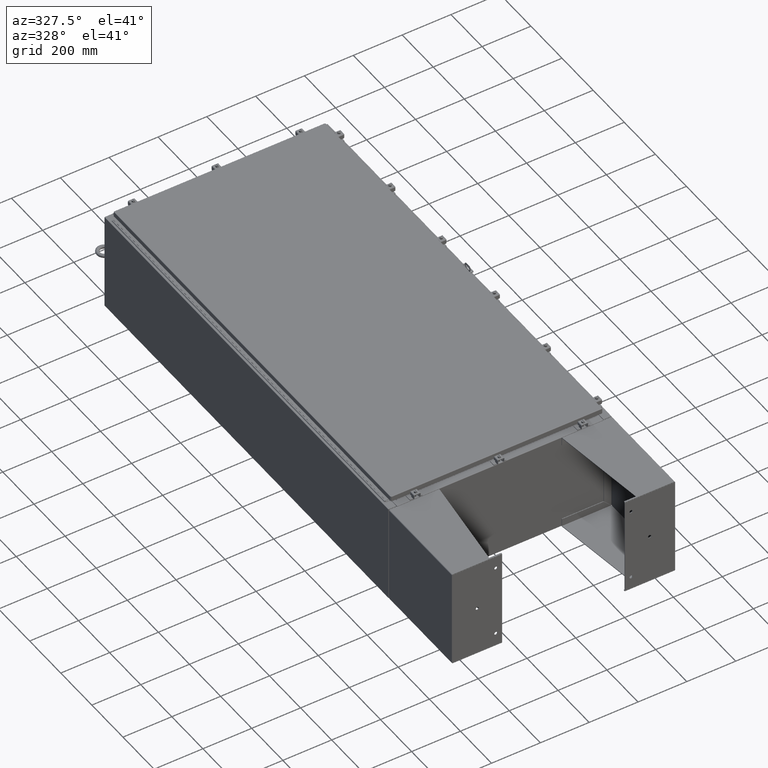
[diagram: clean part render]
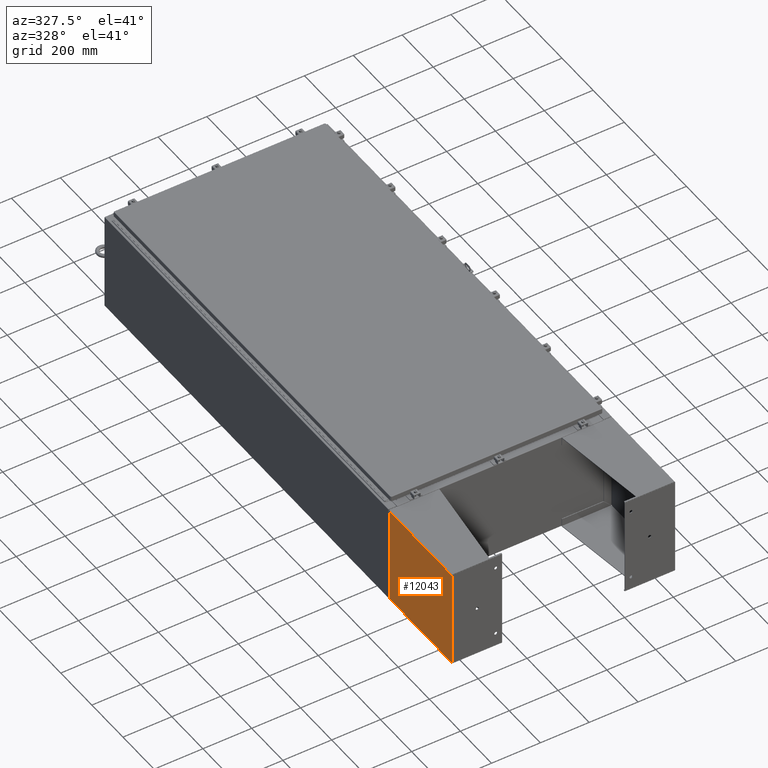
[diagram: same view with one face highlighted and labeled with its STEP entity id]
A machine part, auxiliary view. The second image highlights one B-rep face of the part: STEP entity #12043.
In plain terms, the highlighted planar face has unit normal (-1, 0, -0).
Its self-contained STEP definition (entity closure, byte-faithful):
#1669 = VERTEX_POINT ( 'NONE', #73495 ) ;
#5735 = DIRECTION ( 'NONE',  ( 1.000000000000000000, 0.0000000000000000000, 0.0000000000000000000 ) ) ;
#6946 = ORIENTED_EDGE ( 'NONE', *, *, #6990, .F. ) ;
#6990 = EDGE_CURVE ( 'NONE', #1669, #73595, #51977, .T. ) ;
#9846 = DIRECTION ( 'NONE',  ( -1.000000000000000000, 0.0000000000000000000, -0.0000000000000000000 ) ) ;
#10961 = VECTOR ( 'NONE', #12407, 39.37007874015748100 ) ;
#12043 = ADVANCED_FACE ( 'NONE', ( #58819 ), #57121, .T. ) ;
#12407 = DIRECTION ( 'NONE',  ( -0.0000000000000000000, -1.000000000000000000, -0.0000000000000000000 ) ) ;
#14684 = DIRECTION ( 'NONE',  ( 0.0000000000000000000, 0.0000000000000000000, -1.000000000000000000 ) ) ;
#15194 = CARTESIAN_POINT ( 'NONE',  ( 8.000000000000001800, 8.000000000000001800, -0.1039999999999999800 ) ) ;
#18629 = ORIENTED_EDGE ( 'NONE', *, *, #63674, .T. ) ;
#37641 = LINE ( 'NONE', #47283, #63612 ) ;
#37954 = CARTESIAN_POINT ( 'NONE',  ( -7.856999999999997500, -7.999999999999999100, -0.1039999999999998600 ) ) ;
#41423 = DIRECTION ( 'NONE',  ( 1.000000000000000000, 0.0000000000000000000, 0.0000000000000000000 ) ) ;
#43908 = DIRECTION ( 'NONE',  ( -0.0000000000000000000, 1.000000000000000000, -0.0000000000000000000 ) ) ;
#47283 = CARTESIAN_POINT ( 'NONE',  ( -7.856999999999996700, 7.857000000000001100, -0.1039999999999998600 ) ) ;
#48060 = CARTESIAN_POINT ( 'NONE',  ( 7.857000000000001100, 8.000000000000001800, -0.1039999999999998600 ) ) ;
#48240 = LINE ( 'NONE', #48060, #10961 ) ;
#49792 = CARTESIAN_POINT ( 'NONE',  ( 7.857000000000001100, 7.857000000000001100, -0.1039999999999998600 ) ) ;
#49836 = ORIENTED_EDGE ( 'NONE', *, *, #69953, .T. ) ;
#51977 = LINE ( 'NONE', #53203, #65841 ) ;
#53203 = CARTESIAN_POINT ( 'NONE',  ( -7.999999999999997300, -7.999999999999999100, -0.1039999999999999800 ) ) ;
#57121 = PLANE ( 'NONE',  #75849 ) ;
#58819 = FACE_OUTER_BOUND ( 'NONE', #76379, .T. ) ;
#58820 = CARTESIAN_POINT ( 'NONE',  ( 7.857000000000001100, -7.999999999999989300, -0.1039999999999998600 ) ) ;
#60002 = CARTESIAN_POINT ( 'NONE',  ( -7.856999999999997500, 7.856999999999998400, -0.1039999999999999000 ) ) ;
#60443 = VERTEX_POINT ( 'NONE', #49792 ) ;
#62889 = VECTOR ( 'NONE', #43908, 39.37007874015748100 ) ;
#63612 = VECTOR ( 'NONE', #5735, 39.37007874015748100 ) ;
#63674 = EDGE_CURVE ( 'NONE', #68265, #60443, #37641, .T. ) ;
#64721 = LINE ( 'NONE', #37954, #62889 ) ;
#65841 = VECTOR ( 'NONE', #41423, 39.37007874015748100 ) ;
#66191 = EDGE_CURVE ( 'NONE', #60443, #73595, #48240, .T. ) ;
#68265 = VERTEX_POINT ( 'NONE', #60002 ) ;
#68599 = ORIENTED_EDGE ( 'NONE', *, *, #66191, .T. ) ;
#69953 = EDGE_CURVE ( 'NONE', #1669, #68265, #64721, .T. ) ;
#73495 = CARTESIAN_POINT ( 'NONE',  ( -7.856999999999997500, -8.000000000000000000, -0.1039999999999998600 ) ) ;
#73595 = VERTEX_POINT ( 'NONE', #58820 ) ;
#75849 = AXIS2_PLACEMENT_3D ( 'NONE', #15194, #14684, #9846 ) ;
#76379 = EDGE_LOOP ( 'NONE', ( #49836, #18629, #68599, #6946 ) ) ;